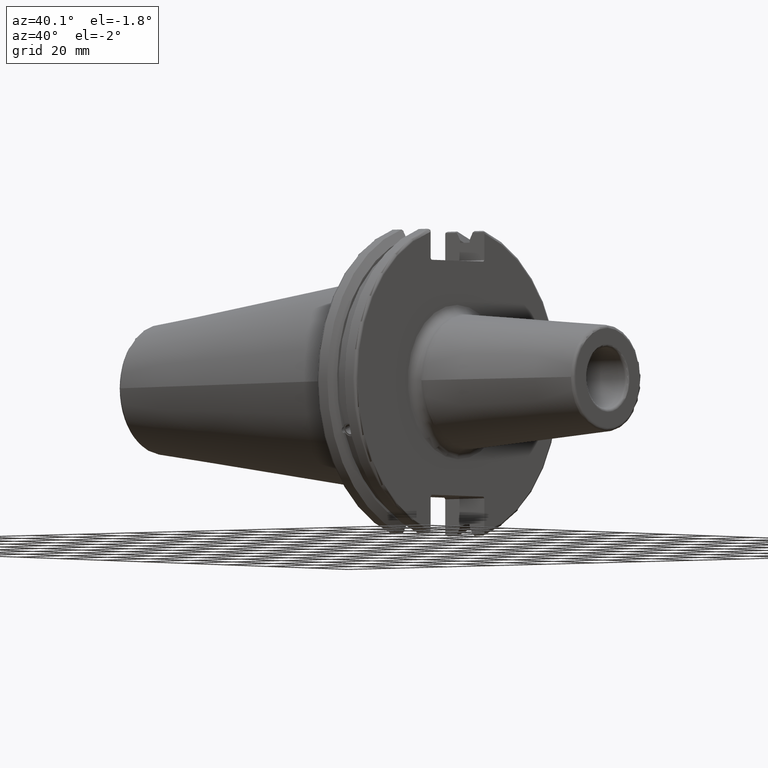
[diagram: clean part render]
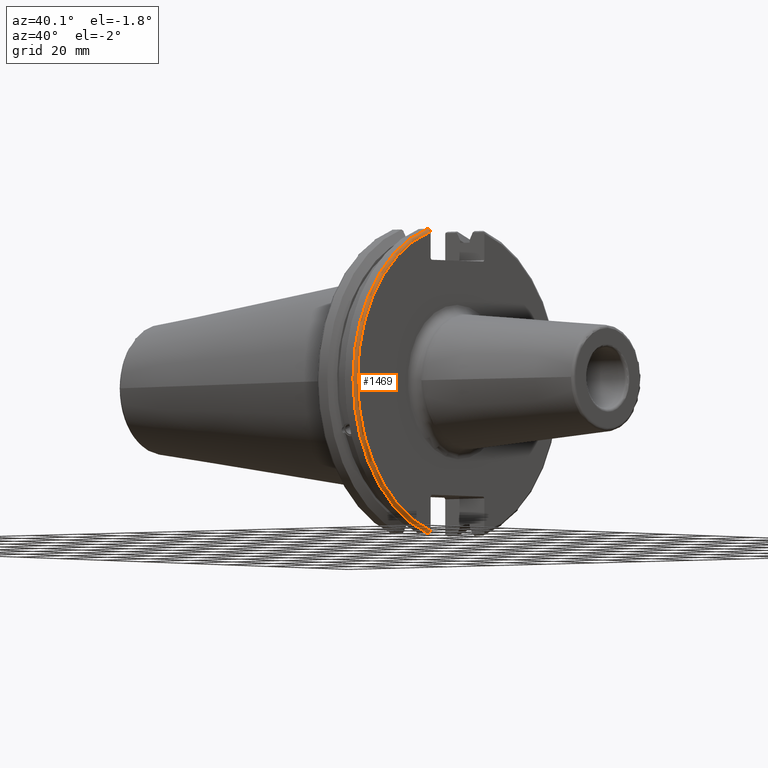
[diagram: same view with one face highlighted and labeled with its STEP entity id]
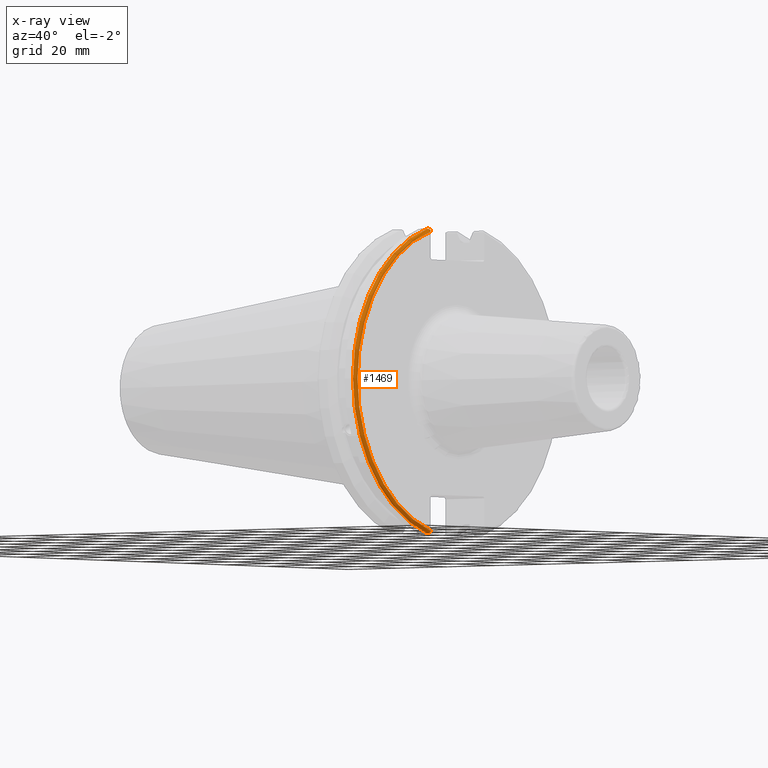
[diagram: x-ray of the same camera — body ghosted, the highlighted face saturated]
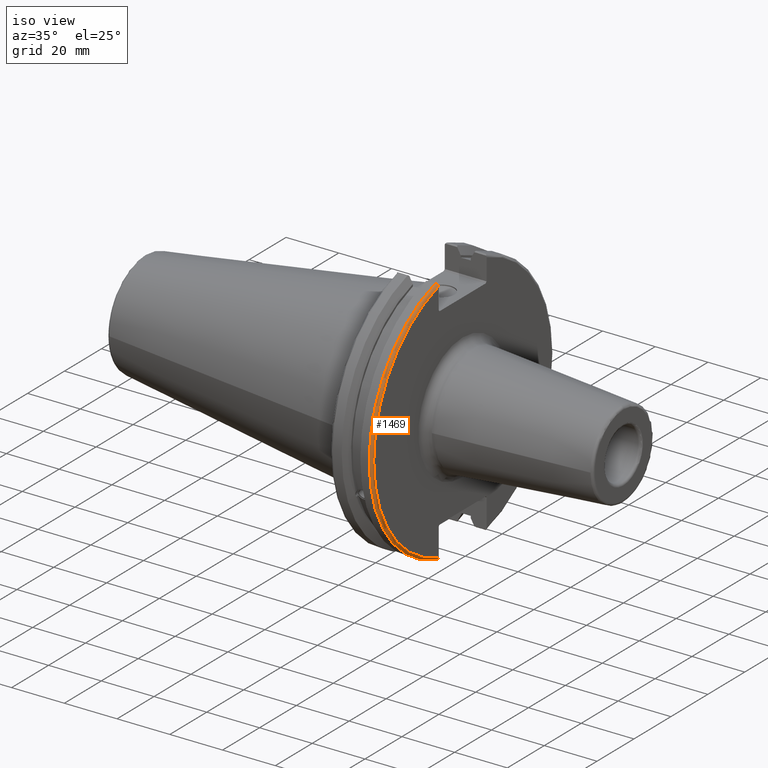
[diagram: same view with one face highlighted and labeled with its STEP entity id]
A machine part, auxiliary view. The second image highlights one B-rep face of the part: STEP entity #1469.
The next image is the same camera in x-ray: the body ghosted, the highlighted face saturated — about 0% of this face is hidden behind the body in this view.
A second angle (iso view) of the same face is appended — the face is thin or edge-on in the first view.
In plain terms, the highlighted toroidal blend (fillet) surface has major radius 48.2125 mm and minor (blend) radius 1 mm.
Its self-contained STEP definition (entity closure, byte-faithful):
#60=B_SPLINE_CURVE_WITH_KNOTS('',3,(#2809,#2810,#2811,#2812,#2813,#2814),
 .UNSPECIFIED.,.F.,.F.,(4,2,4),(0.097707143645253,0.112358403262293,0.150882178076498),
 .UNSPECIFIED.);
#61=B_SPLINE_CURVE_WITH_KNOTS('',3,(#2816,#2817,#2818,#2819,#2820,#2821),
 .UNSPECIFIED.,.F.,.F.,(4,2,4),(0.452859694247731,0.491383469061936,0.506034728678978),
 .UNSPECIFIED.);
#62=B_SPLINE_CURVE_WITH_KNOTS('',3,(#2823,#2824,#2825,#2826,#2827,#2828,
#2829,#2830),.UNSPECIFIED.,.F.,.F.,(4,2,2,4),(-0.104075769062722,-0.0730268503455477,
-0.0343639873656263,0.),.UNSPECIFIED.);
#63=B_SPLINE_CURVE_WITH_KNOTS('',3,(#2833,#2834,#2835,#2836,#2837,#2838,
#2839,#2840),.UNSPECIFIED.,.F.,.F.,(4,2,2,4),(0.,0.0364336453281818,0.0778720357014993,
0.104197480645881),.UNSPECIFIED.);
#390=FACE_OUTER_BOUND('',#491,.T.);
#491=EDGE_LOOP('',(#1219,#1220,#1221,#1222,#1223,#1224));
#549=CIRCLE('',#1555,48.2125);
#587=CIRCLE('',#1632,49.2125);
#625=VERTEX_POINT('',#2152);
#626=VERTEX_POINT('',#2154);
#723=VERTEX_POINT('',#2808);
#724=VERTEX_POINT('',#2815);
#725=VERTEX_POINT('',#2822);
#726=VERTEX_POINT('',#2831);
#779=EDGE_CURVE('',#626,#625,#549,.T.);
#906=EDGE_CURVE('',#723,#626,#60,.T.);
#907=EDGE_CURVE('',#625,#724,#61,.T.);
#908=EDGE_CURVE('',#724,#725,#62,.T.);
#909=EDGE_CURVE('',#725,#726,#587,.T.);
#910=EDGE_CURVE('',#726,#723,#63,.T.);
#1219=ORIENTED_EDGE('',*,*,#906,.T.);
#1220=ORIENTED_EDGE('',*,*,#779,.T.);
#1221=ORIENTED_EDGE('',*,*,#907,.T.);
#1222=ORIENTED_EDGE('',*,*,#908,.T.);
#1223=ORIENTED_EDGE('',*,*,#909,.T.);
#1224=ORIENTED_EDGE('',*,*,#910,.T.);
#1421=TOROIDAL_SURFACE('',#1631,48.2125,1.);
#1469=ADVANCED_FACE('',(#390),#1421,.T.);
#1555=AXIS2_PLACEMENT_3D('',#2155,#1748,#1749);
#1631=AXIS2_PLACEMENT_3D('',#2807,#1950,#1951);
#1632=AXIS2_PLACEMENT_3D('',#2832,#1952,#1953);
#1748=DIRECTION('center_axis',(-1.,0.,0.));
#1749=DIRECTION('ref_axis',(0.,-1.,1.60812264967664E-16));
#1950=DIRECTION('center_axis',(1.,0.,0.));
#1951=DIRECTION('ref_axis',(0.,0.,-1.));
#1952=DIRECTION('center_axis',(1.,0.,0.));
#1953=DIRECTION('ref_axis',(0.,-1.,1.60812264967664E-16));
#2152=CARTESIAN_POINT('',(19.05,-12.95,46.4407434937254));
#2154=CARTESIAN_POINT('',(19.05,-12.95,-46.4407434937254));
#2155=CARTESIAN_POINT('Origin',(19.05,0.,0.));
#2807=CARTESIAN_POINT('Origin',(18.05,0.,0.));
#2808=CARTESIAN_POINT('',(18.9055020570566,-12.95,-46.9780755322917));
#2809=CARTESIAN_POINT('Ctrl Pts',(18.9055020570566,-12.95,-46.9780755322917));
#2810=CARTESIAN_POINT('Ctrl Pts',(18.9322353702005,-12.95,-46.9322596399785));
#2811=CARTESIAN_POINT('Ctrl Pts',(18.9549831813775,-12.95,-46.8849952622217));
#2812=CARTESIAN_POINT('Ctrl Pts',(19.0209992543299,-12.95,-46.7204975987179));
#2813=CARTESIAN_POINT('Ctrl Pts',(19.05,-12.95,-46.5691560764394));
#2814=CARTESIAN_POINT('Ctrl Pts',(19.05,-12.95,-46.4407434937254));
#2815=CARTESIAN_POINT('',(18.9055020570566,-12.95,46.9780755322918));
#2816=CARTESIAN_POINT('Ctrl Pts',(19.05,-12.95,46.4407434937254));
#2817=CARTESIAN_POINT('Ctrl Pts',(19.05,-12.95,46.5691560764394));
#2818=CARTESIAN_POINT('Ctrl Pts',(19.0209992543299,-12.95,46.7204975987179));
#2819=CARTESIAN_POINT('Ctrl Pts',(18.9549831813775,-12.95,46.8849952622217));
#2820=CARTESIAN_POINT('Ctrl Pts',(18.9322353702005,-12.95,46.9322596399785));
#2821=CARTESIAN_POINT('Ctrl Pts',(18.9055020570566,-12.95,46.9780755322918));
#2822=CARTESIAN_POINT('',(18.05,-13.4317035994433,47.3440544806494));
#2823=CARTESIAN_POINT('Ctrl Pts',(18.9055020570566,-12.95,46.9780755322918));
#2824=CARTESIAN_POINT('Ctrl Pts',(18.8571496772125,-13.0300321736484,47.0388807469102));
#2825=CARTESIAN_POINT('Ctrl Pts',(18.792640282015,-13.1083611826073,47.0983919657547));
#2826=CARTESIAN_POINT('Ctrl Pts',(18.6399248789208,-13.2478194810695,47.2043467509586));
#2827=CARTESIAN_POINT('Ctrl Pts',(18.5186188350904,-13.3242014686233,47.2623787015413));
#2828=CARTESIAN_POINT('Ctrl Pts',(18.2983889675417,-13.4067722493645,47.3251126473446));
#2829=CARTESIAN_POINT('Ctrl Pts',(18.1645466245521,-13.4317035994433,47.3440544806494));
#2830=CARTESIAN_POINT('Ctrl Pts',(18.05,-13.4317035994433,47.3440544806494));
#2831=CARTESIAN_POINT('',(18.05,-13.4317035994433,-47.3440544806494));
#2832=CARTESIAN_POINT('Origin',(18.05,0.,0.));
#2833=CARTESIAN_POINT('Ctrl Pts',(18.05,-13.4317035994433,-47.3440544806494));
#2834=CARTESIAN_POINT('Ctrl Pts',(18.1714454844273,-13.4317035994433,-47.3440544806494));
#2835=CARTESIAN_POINT('Ctrl Pts',(18.3128758164404,-13.4037095171132,-47.3227857070233));
#2836=CARTESIAN_POINT('Ctrl Pts',(18.54495745946,-13.3111366376071,-47.2524525703658));
#2837=CARTESIAN_POINT('Ctrl Pts',(18.6710431007969,-13.2254637570201,-47.1873617743322));
#2838=CARTESIAN_POINT('Ctrl Pts',(18.811782280389,-13.0847856162862,-47.0804802022157));
#2839=CARTESIAN_POINT('Ctrl Pts',(18.8641312352177,-13.0184763978125,-47.0301011349397));
#2840=CARTESIAN_POINT('Ctrl Pts',(18.9055020570566,-12.95,-46.9780755322917));